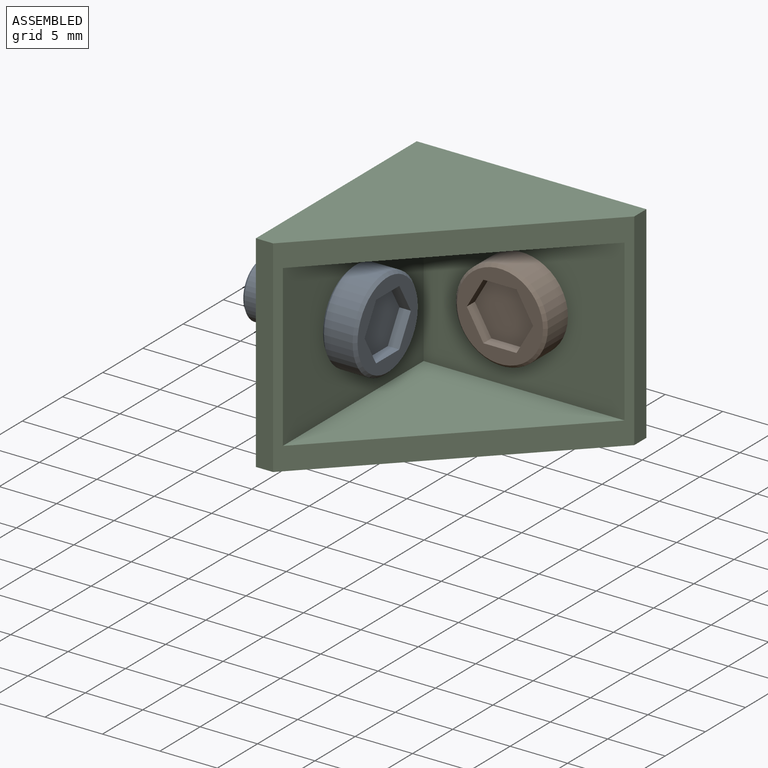
[diagram: assembled view]
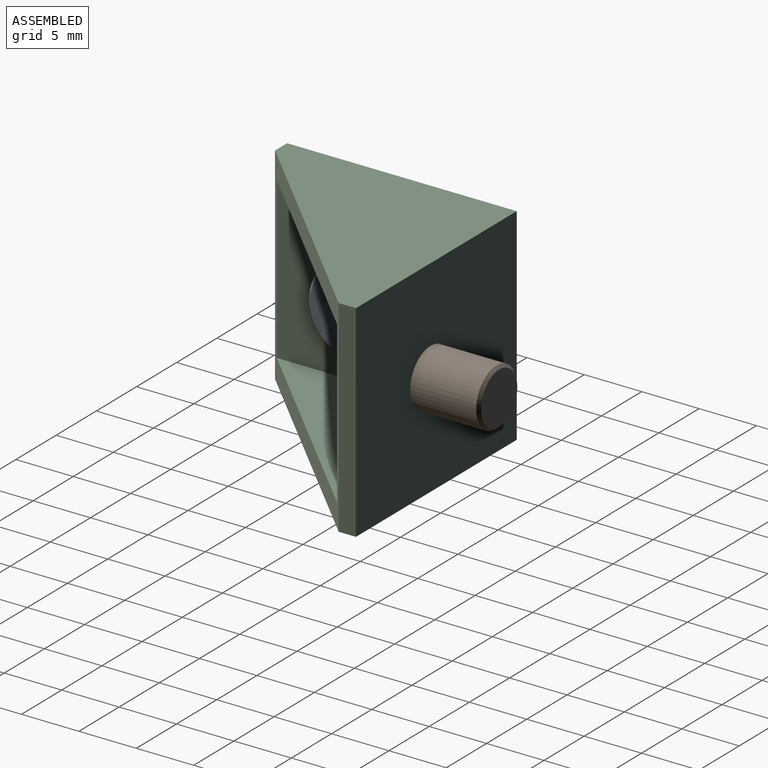
[diagram: assembled view, second angle]
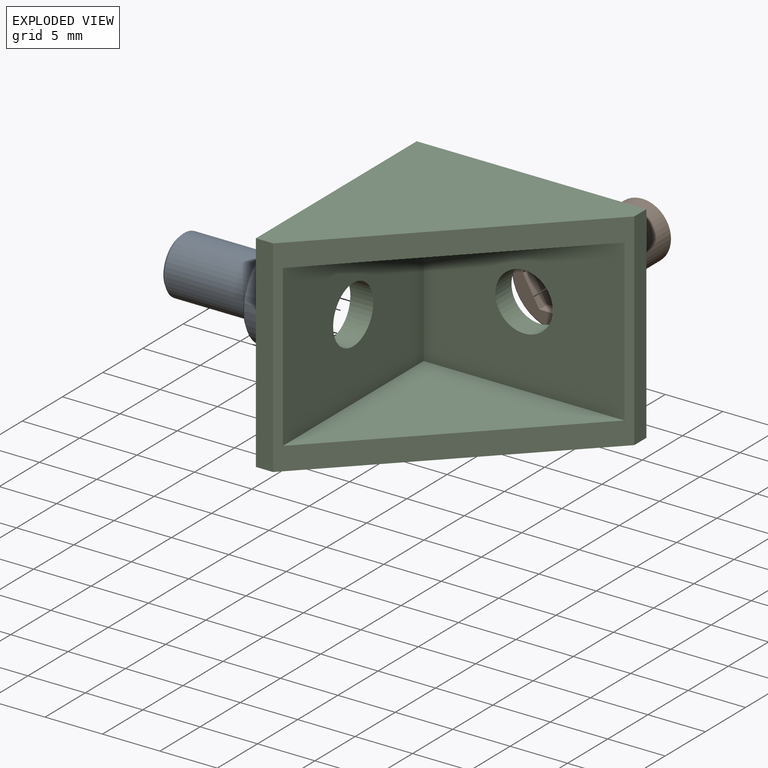
[diagram: exploded view]
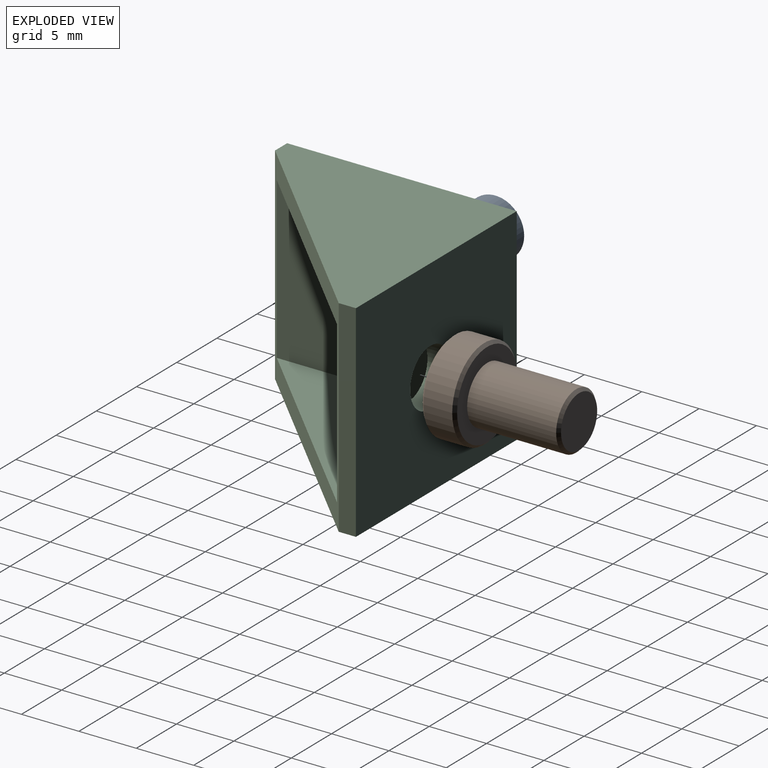
[diagram: exploded view, second angle]
ASSEMBLY  parts=3 mates=2
PART A: 15 faces, bbox 8x8x11 mm
  f0: plane 7.5x7.5mm, normal (0,0,-1), area 22.5mm2, adj f4,f5,f6,f7,f8,f9,f11
  f1: cylinder r=4mm len=8mm, axis (0,0,-1), area 62.8mm2, adj f10,f11
  f2: plane 7.5x7.5mm, normal (0,0,1), area 24.5mm2, adj f10,f12
  f3: plane 5.77x5mm, normal (0,0,-1), area 21.7mm2, adj f4,f5,f6,f7,f8,f9
  f4: plane 2.89x1mm, normal (0,1,0), area 2.9mm2, adj f0,f3,f5,f9
  f5: plane 2.5x1.44mm, normal (-0.87,0.5,0), area 2.9mm2, adj f0,f3,f4,f6
  f6: plane 2.5x1.44mm, normal (-0.87,-0.5,0), area 2.9mm2, adj f0,f3,f5,f7
  f7: plane 2.89x1mm, normal (0,-1,0), area 2.9mm2, adj f0,f3,f6,f8
  f8: plane 2.5x1.44mm, normal (0.87,-0.5,0), area 2.9mm2, adj f0,f3,f7,f9
  f9: plane 2.5x1.44mm, normal (0.87,0.5,0), area 2.9mm2, adj f0,f3,f4,f8
  f10: cone r=3.75mm half-angle=45deg, axis (0,0,-1), area 8.6mm2, adj f1,f2
  f11: cone r=4mm half-angle=45deg, axis (0,0,1), area 8.6mm2, adj f0,f1
  f12: cylinder r=2.5mm len=7.75mm, axis (0,0,-1), area 121.7mm2, adj f2,f14
  f13: plane 4.5x4.5mm, normal (0,0,1), area 15.9mm2, adj f14
  f14: cone r=2.25mm half-angle=45deg, axis (0,0,-1), area 5.3mm2, adj f12,f13
PART B: same geometry as A
PART C: 13 faces, bbox 20x20x18 mm
  f0: plane 18.5x18.5mm, normal (0.71,-0.71,0), area 124.5mm2, adj f1,f4,f5,f6,f7,f8,f9,f10
  f1: plane 18x1.5mm, normal (1,0,0), area 27mm2, adj f0,f2,f5,f6
  f2: plane 20x18mm, normal (0,1,0), area 340.4mm2, adj f1,f3,f5,f6,f11
  f3: plane 20x18mm, normal (-1,0,0), area 340.4mm2, adj f2,f4,f5,f6,f12
  f4: plane 18x1.5mm, normal (0,-1,0), area 27mm2, adj f0,f3,f5,f6
  f5: plane 20x20mm, normal (0,0,1), area 228.9mm2, adj f0,f1,f2,f3,f4
  f6: plane 20x20mm, normal (0,0,-1), area 228.9mm2, adj f0,f1,f2,f3,f4
  f7: plane 17.5x14mm, normal (0,-1,0), area 225.4mm2, adj f0,f8,f9,f10,f11
  f8: plane 17.5x14mm, normal (1,0,0), area 225.4mm2, adj f0,f7,f9,f10,f12
  f9: plane 17.5x17.5mm, normal (0,0,-1), area 153.1mm2, adj f0,f7,f8
  f10: plane 17.5x17.5mm, normal (0,0,1), area 153.1mm2, adj f0,f7,f8
  f11: cylinder r=2.5mm len=5mm, axis (0,-1,0), area 31.4mm2, adj f2,f7
  f12: cylinder r=2.5mm len=5mm, axis (1,0,0), area 31.4mm2, adj f3,f8
PLACE A rot(axis=(-0.58,-0.58,0.58),120deg) t=(-2.13,-3.62,9)mm
PLACE B rot(axis=(-1,0,0),90deg) t=(3.62,2.13,9)mm
PLACE C t=(2.87,-2.87,-500)mm
MATE fastened C.f12 <-> A.f12  axis (1,0,0) through (-5.13,-3.62,9)mm
MATE fastened B.f12 <-> C.f11  axis (0,1,0) through (3.62,5.13,9)mm
